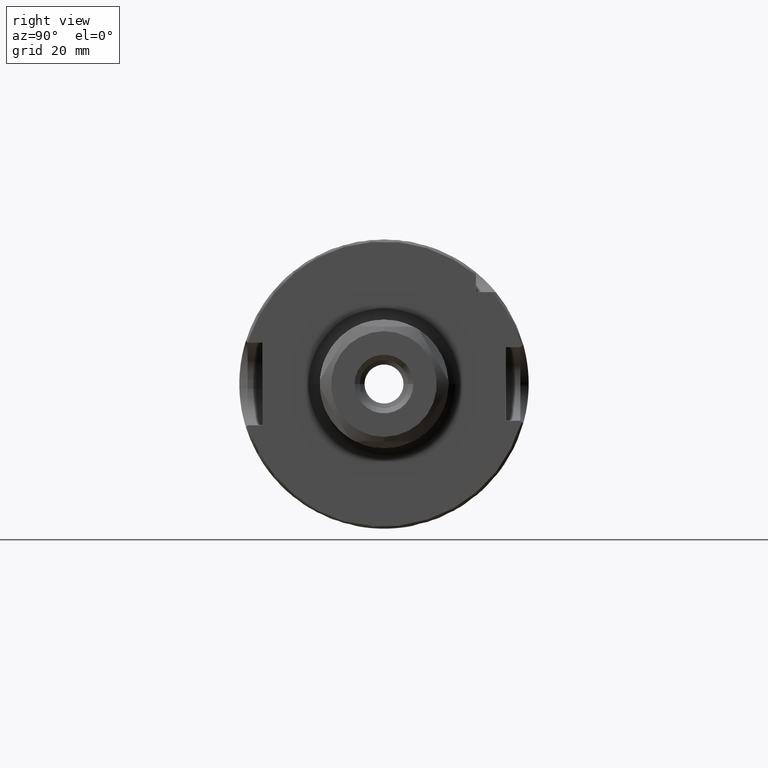
[diagram: clean part render]
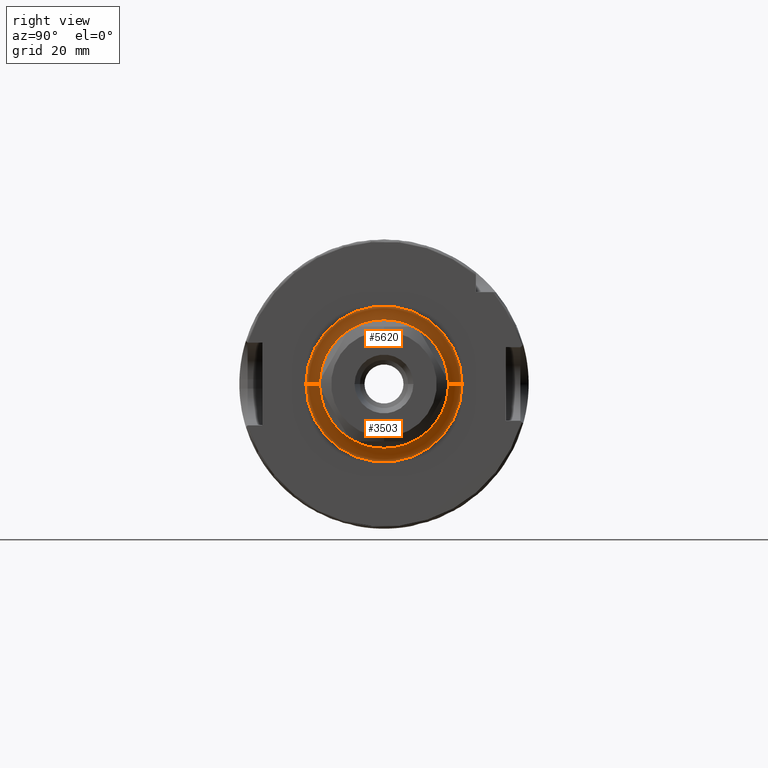
[diagram: same view with one multi-face feature highlighted, each face labeled with its STEP entity id]
A machine part, right view. The highlighted faces form ONE feature: a constant-radius fillet chain: 2 tangent blend faces with common blend radius 3 mm. The faces share edges in the B-rep.
Their STEP definitions:
[1] entity #5620 (Torus):
#523=CARTESIAN_POINT('',(2.9E1,0.E0,0.E0));
#524=DIRECTION('',(1.E0,0.E0,0.E0));
#525=DIRECTION('',(0.E0,1.E0,0.E0));
#526=AXIS2_PLACEMENT_3D('',#523,#524,#525);
#551=CARTESIAN_POINT('',(2.9E1,-1.7E1,8.599732037595E-12));
#552=DIRECTION('',(0.E0,-5.058696517235E-13,-1.E0));
#553=DIRECTION('',(-1.E0,6.631732200428E-13,0.E0));
#554=AXIS2_PLACEMENT_3D('',#551,#552,#553);
#596=CARTESIAN_POINT('',(2.6E1,0.E0,0.E0));
#597=DIRECTION('',(1.E0,0.E0,0.E0));
#598=DIRECTION('',(0.E0,1.E0,0.E0));
#599=AXIS2_PLACEMENT_3D('',#596,#597,#598);
#2369=CARTESIAN_POINT('',(2.9E1,1.7E1,-8.602063505947E-12));
#2370=DIRECTION('',(0.E0,5.060049601546E-13,1.E0));
#2371=DIRECTION('',(-1.E0,-6.631732200428E-13,0.E0));
#2372=AXIS2_PLACEMENT_3D('',#2369,#2370,#2371);
#2793=CARTESIAN_POINT('',(2.6E1,1.7E1,0.E0));
#2794=CARTESIAN_POINT('',(2.6E1,-1.7E1,0.E0));
#2795=VERTEX_POINT('',#2793);
#2796=VERTEX_POINT('',#2794);
#2797=CARTESIAN_POINT('',(2.9E1,1.4E1,0.E0));
#2798=CARTESIAN_POINT('',(2.9E1,-1.4E1,0.E0));
#2799=VERTEX_POINT('',#2797);
#2800=VERTEX_POINT('',#2798);
#5609=CARTESIAN_POINT('',(2.9E1,0.E0,0.E0));
#5610=DIRECTION('',(1.E0,0.E0,0.E0));
#5611=DIRECTION('',(0.E0,9.998632353156E-1,-1.653815782571E-2));
#5612=AXIS2_PLACEMENT_3D('',#5609,#5610,#5611);
#5613=TOROIDAL_SURFACE('',#5612,1.7E1,3.E0);
#5614=ORIENTED_EDGE('',*,*,#3537,.F.);
#5615=ORIENTED_EDGE('',*,*,#3499,.T.);
#5616=ORIENTED_EDGE('',*,*,#3456,.T.);
#5617=ORIENTED_EDGE('',*,*,#3496,.F.);
#5618=EDGE_LOOP('',(#5614,#5615,#5616,#5617));
#5619=FACE_OUTER_BOUND('',#5618,.F.);
#5620=ADVANCED_FACE('',(#5619),#5613,.F.);
#527=CIRCLE('',#526,1.4E1);
#555=CIRCLE('',#554,3.E0);
#600=CIRCLE('',#599,1.7E1);
#2373=CIRCLE('',#2372,3.E0);
#3456=EDGE_CURVE('',#2799,#2800,#527,.T.);
#3496=EDGE_CURVE('',#2796,#2800,#555,.T.);
#3499=EDGE_CURVE('',#2795,#2799,#2373,.T.);
#3537=EDGE_CURVE('',#2795,#2796,#600,.T.);
[2] entity #3503 (Torus):
#537=CARTESIAN_POINT('',(2.9E1,0.E0,0.E0));
#538=DIRECTION('',(1.E0,0.E0,0.E0));
#539=DIRECTION('',(0.E0,-1.E0,0.E0));
#540=AXIS2_PLACEMENT_3D('',#537,#538,#539);
#551=CARTESIAN_POINT('',(2.9E1,-1.7E1,8.599732037595E-12));
#552=DIRECTION('',(0.E0,-5.058696517235E-13,-1.E0));
#553=DIRECTION('',(-1.E0,6.631732200428E-13,0.E0));
#554=AXIS2_PLACEMENT_3D('',#551,#552,#553);
#601=CARTESIAN_POINT('',(2.6E1,0.E0,0.E0));
#602=DIRECTION('',(1.E0,0.E0,0.E0));
#603=DIRECTION('',(0.E0,-1.E0,0.E0));
#604=AXIS2_PLACEMENT_3D('',#601,#602,#603);
#2369=CARTESIAN_POINT('',(2.9E1,1.7E1,-8.602063505947E-12));
#2370=DIRECTION('',(0.E0,5.060049601546E-13,1.E0));
#2371=DIRECTION('',(-1.E0,-6.631732200428E-13,0.E0));
#2372=AXIS2_PLACEMENT_3D('',#2369,#2370,#2371);
#2793=CARTESIAN_POINT('',(2.6E1,1.7E1,0.E0));
#2794=CARTESIAN_POINT('',(2.6E1,-1.7E1,0.E0));
#2795=VERTEX_POINT('',#2793);
#2796=VERTEX_POINT('',#2794);
#2797=CARTESIAN_POINT('',(2.9E1,1.4E1,0.E0));
#2798=CARTESIAN_POINT('',(2.9E1,-1.4E1,0.E0));
#2799=VERTEX_POINT('',#2797);
#2800=VERTEX_POINT('',#2798);
#3489=CARTESIAN_POINT('',(2.9E1,0.E0,0.E0));
#3490=DIRECTION('',(1.E0,0.E0,0.E0));
#3491=DIRECTION('',(0.E0,-9.998632353156E-1,1.653815782571E-2));
#3492=AXIS2_PLACEMENT_3D('',#3489,#3490,#3491);
#3493=TOROIDAL_SURFACE('',#3492,1.7E1,3.E0);
#3495=ORIENTED_EDGE('',*,*,#3494,.F.);
#3497=ORIENTED_EDGE('',*,*,#3496,.T.);
#3498=ORIENTED_EDGE('',*,*,#3471,.T.);
#3500=ORIENTED_EDGE('',*,*,#3499,.F.);
#3501=EDGE_LOOP('',(#3495,#3497,#3498,#3500));
#3502=FACE_OUTER_BOUND('',#3501,.F.);
#3503=ADVANCED_FACE('',(#3502),#3493,.F.);
#541=CIRCLE('',#540,1.4E1);
#555=CIRCLE('',#554,3.E0);
#605=CIRCLE('',#604,1.7E1);
#2373=CIRCLE('',#2372,3.E0);
#3471=EDGE_CURVE('',#2800,#2799,#541,.T.);
#3494=EDGE_CURVE('',#2796,#2795,#605,.T.);
#3496=EDGE_CURVE('',#2796,#2800,#555,.T.);
#3499=EDGE_CURVE('',#2795,#2799,#2373,.T.);